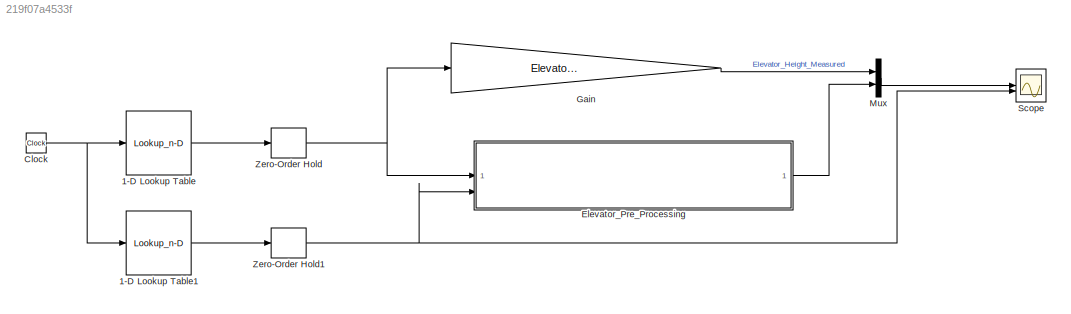
MODEL slx_219f07a4533f
KIND model
CONFIG AbsTol = auto
CONFIG EnableMultiTasking = off
CONFIG FixedStep = auto
CONFIG MaxStep = 0.02
CONFIG MinStep = auto
CONFIG RelTol = 1e-3
CONFIG SampleTimeConstraint = Unconstrained
CONFIG SolverName = VariableStepDiscrete
CONFIG StartTime = 0.0
CONFIG StopTime = 22
BLOCK [Lookup_n-D] 1-D Lookup Table
  BreakpointsForDimension1 = [0 2 4 6 8 10 12 14 16 18 20 22]
  InputPortMap = u0
  InternalRulePriority = Speed
  NumberOfTableDimensions = 1
  RndMeth = Simplest
  Table = 100-[0 0 100 100 10 10 100 100 20 20 100 100]
BLOCK [Lookup_n-D] 1-D Lookup Table1
  BreakpointsForDimension1 = [0 2 4 6 7.98 8 10 10.02 12 14 15.98 16 17.98 18 20 22]
  InputPortMap = u0
  InternalRulePriority = Speed
  NumberOfTableDimensions = 1
  RndMeth = Simplest
  Table = [0 0 0 0 0 1 1 0 0 0 0 1 1 0 0 0]
BLOCK [Clock] Clock
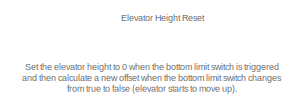
[diagram: Elevator_Pre_Processing - part 1/3, top center region]
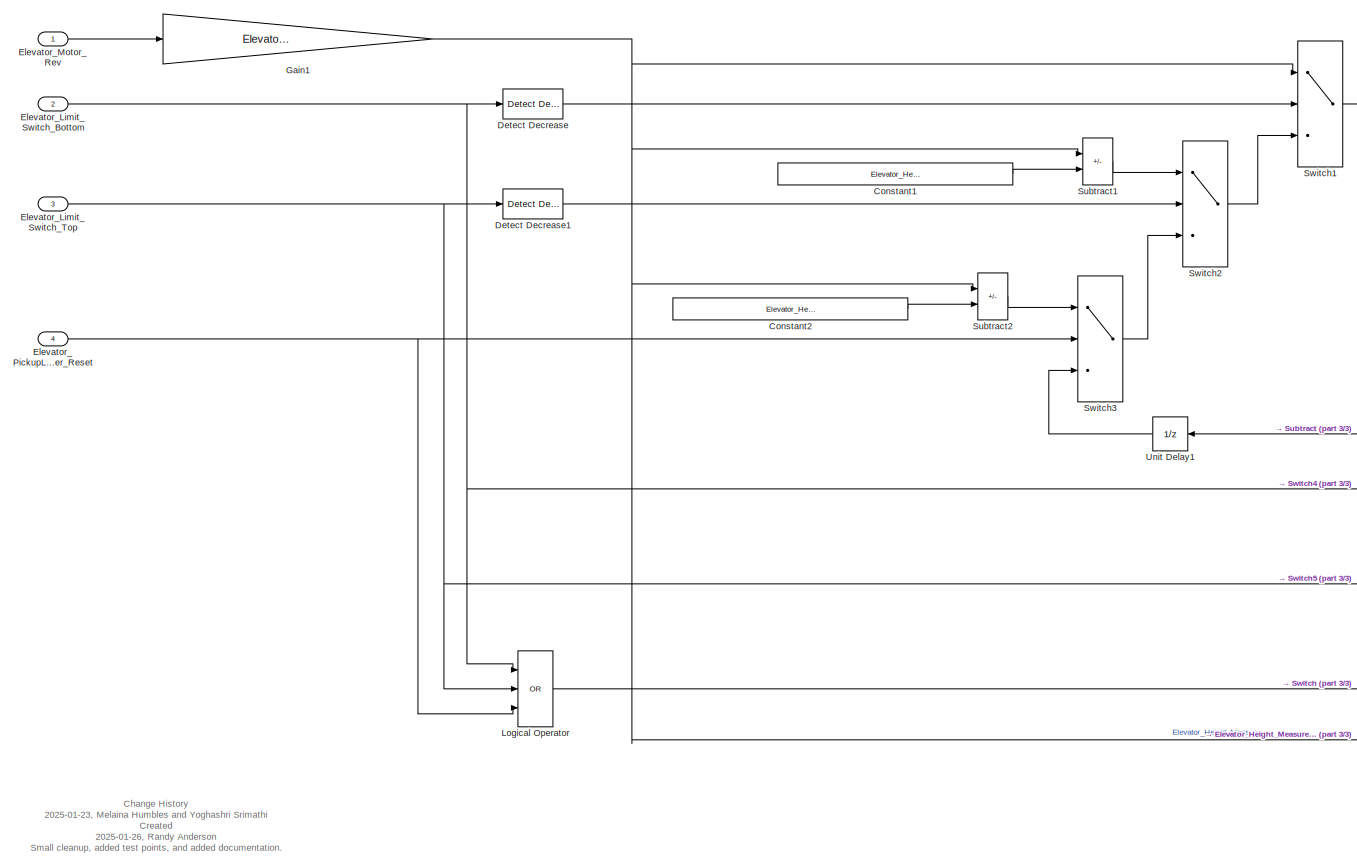
[diagram: Elevator_Pre_Processing - part 2/3, left side, full height]
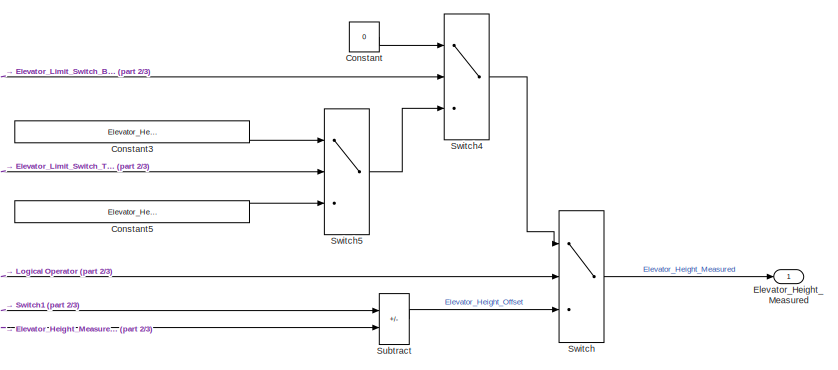
[diagram: Elevator_Pre_Processing - part 3/3, bottom right region]
BLOCK [SubSystem] Elevator_Pre_Processing
BLOCK [Constant] Elevator_Pre_Processing/Constant
  Value = 0
BLOCK [Constant] Elevator_Pre_Processing/Constant1
  Value = Elevator_Height_Top_Reset
BLOCK [Constant] Elevator_Pre_Processing/Constant2
  Value = Elevator_Height_PickupLower_Reset
BLOCK [Constant] Elevator_Pre_Processing/Constant3
  Value = Elevator_Height_Top_Reset
BLOCK [Constant] Elevator_Pre_Processing/Constant5
  Value = Elevator_Height_PickupLower_Reset
BLOCK [Reference] Elevator_Pre_Processing/Detect Decrease  REF=simulink/Logic and Bit
Operations/Detect
Decrease
  SourceBlock = simulink/Logic and Bit\nOperations/Detect\nDecrease
  SourceType = Detect Decrease
BLOCK [Reference] Elevator_Pre_Processing/Detect Decrease1  REF=simulink/Logic and Bit
Operations/Detect
Decrease
  SourceBlock = simulink/Logic and Bit\nOperations/Detect\nDecrease
  SourceType = Detect Decrease
BLOCK [Outport] Elevator_Pre_Processing/Elevator_Height_Measured
BLOCK [Inport] Elevator_Pre_Processing/Elevator_Limit_Switch_Bottom
  Port = 2
BLOCK [Inport] Elevator_Pre_Processing/Elevator_Limit_Switch_Top
  Port = 3
BLOCK [Inport] Elevator_Pre_Processing/Elevator_Motor_Rev
BLOCK [Inport] Elevator_Pre_Processing/Elevator_PickupLower_Reset
  Port = 4
BLOCK [Gain] Elevator_Pre_Processing/Gain1
  Gain = Elevator_MotorRev_to_Inch
BLOCK [Logic] Elevator_Pre_Processing/Logical Operator
  AllPortsSameDT = off
  Inputs = 3
  Operator = OR
  OutDataTypeStr = boolean
BLOCK [Sum] Elevator_Pre_Processing/Subtract
  IconShape = rectangular
  Inputs = -+
BLOCK [Sum] Elevator_Pre_Processing/Subtract1
  IconShape = rectangular
  Inputs = +-
BLOCK [Sum] Elevator_Pre_Processing/Subtract2
  IconShape = rectangular
  Inputs = +-
BLOCK [Switch] Elevator_Pre_Processing/Switch
  Criteria = u2 ~= 0
  InputSameDT = off
  SaturateOnIntegerOverflow = off
BLOCK [Switch] Elevator_Pre_Processing/Switch1
  Criteria = u2 ~= 0
  InputSameDT = off
  SaturateOnIntegerOverflow = off
BLOCK [Switch] Elevator_Pre_Processing/Switch2
  Criteria = u2 ~= 0
  InputSameDT = off
  SaturateOnIntegerOverflow = off
BLOCK [Switch] Elevator_Pre_Processing/Switch3
  Criteria = u2 ~= 0
  InputSameDT = off
  SaturateOnIntegerOverflow = off
BLOCK [Switch] Elevator_Pre_Processing/Switch4
  Criteria = u2 ~= 0
  InputSameDT = off
  SaturateOnIntegerOverflow = off
BLOCK [Switch] Elevator_Pre_Processing/Switch5
  Criteria = u2 ~= 0
  InputSameDT = off
  SaturateOnIntegerOverflow = off
BLOCK [UnitDelay] Elevator_Pre_Processing/Unit Delay1
  HasFrameUpgradeWarning = on
  SampleTime = -1
BLOCK [Gain] Gain
  Gain = Elevator_MotorRev_to_Inch
BLOCK [Mux] Mux
  DisplayOption = bar
  Inputs = 2
BLOCK [Scope] Scope
  Floating = off
  NumInputPorts = 2
  ScopeSpecificationString = Simulink.scopes.TimeScopeBlockCfg('CurrentConfiguration', extmgr.ConfigurationSet(extmgr.Configuration('Core','General UI',true),extmgr.Configuration('Core','Source UI',true),extmgr.Configuration('Sources','WiredSimulink',true),extmgr.Configuration('Visuals','Time Domain',true,'SerializedDisplays',{struct('MinYLimReal','-12.5','MaxYLimReal','112.5','YLabelReal','','MinYLimMag','0.00000','MaxYLimMa...<+2080ch>
BLOCK [ZeroOrderHold] Zero-Order Hold
  SampleTime = 0.02
BLOCK [ZeroOrderHold] Zero-Order Hold1
  SampleTime = 0.02
ANNOTATION Elevator_Pre_Processing: Elevator Height Reset
ANNOTATION Elevator_Pre_Processing: Change History 2025-01-23, Melaina Humbles and Yoghashri Srimathi Created 2025-01-26, Randy Anderson Small cleanup, added test points, and added documentation.
ANNOTATION Elevator_Pre_Processing: Set the elevator height to 0 when the bottom limit switch is triggered and then calculate a new offset when the bottom limit switch changes from true to false (elevator starts to move up).
LINE 1-D Lookup Table1:1 -> Zero-Order Hold1:1
LINE 1-D Lookup Table:1 -> Zero-Order Hold:1
NET Clock:1 -> 1-D Lookup Table1:1, 1-D Lookup Table:1
LINE Elevator_Pre_Processing/Constant1:1 -> Elevator_Pre_Processing/Subtract1:2
LINE Elevator_Pre_Processing/Constant2:1 -> Elevator_Pre_Processing/Subtract2:2
LINE Elevator_Pre_Processing/Constant3:1 -> Elevator_Pre_Processing/Switch5:1
LINE Elevator_Pre_Processing/Constant5:1 -> Elevator_Pre_Processing/Switch5:3
LINE Elevator_Pre_Processing/Constant:1 -> Elevator_Pre_Processing/Switch4:1
LINE Elevator_Pre_Processing/Detect Decrease1:1 -> Elevator_Pre_Processing/Switch2:2
LINE Elevator_Pre_Processing/Detect Decrease:1 -> Elevator_Pre_Processing/Switch1:2
NET Elevator_Pre_Processing/Elevator_Limit_Switch_Bottom:1 -> Elevator_Pre_Processing/Detect Decrease:1, Elevator_Pre_Processing/Logical Operator:1, Elevator_Pre_Processing/Switch4:2
NET Elevator_Pre_Processing/Elevator_Limit_Switch_Top:1 -> Elevator_Pre_Processing/Detect Decrease1:1, Elevator_Pre_Processing/Logical Operator:2, Elevator_Pre_Processing/Switch5:2
LINE Elevator_Pre_Processing/Elevator_Motor_Rev:1 -> Elevator_Pre_Processing/Gain1:1
NET Elevator_Pre_Processing/Elevator_PickupLower_Reset:1 -> Elevator_Pre_Processing/Logical Operator:3, Elevator_Pre_Processing/Switch3:2
NET Elevator_Pre_Processing/Gain1:1 -> Elevator_Pre_Processing/Subtract1:1, Elevator_Pre_Processing/Subtract2:1, Elevator_Pre_Processing/Subtract:2, Elevator_Pre_Processing/Switch1:1
LINE Elevator_Pre_Processing/Logical Operator:1 -> Elevator_Pre_Processing/Switch:2
LINE Elevator_Pre_Processing/Subtract1:1 -> Elevator_Pre_Processing/Switch2:1
LINE Elevator_Pre_Processing/Subtract2:1 -> Elevator_Pre_Processing/Switch3:1
LINE Elevator_Pre_Processing/Subtract:1 -> Elevator_Pre_Processing/Switch:3
NET Elevator_Pre_Processing/Switch1:1 -> Elevator_Pre_Processing/Subtract:1, Elevator_Pre_Processing/Unit Delay1:1
LINE Elevator_Pre_Processing/Switch2:1 -> Elevator_Pre_Processing/Switch1:3
LINE Elevator_Pre_Processing/Switch3:1 -> Elevator_Pre_Processing/Switch2:3
LINE Elevator_Pre_Processing/Switch4:1 -> Elevator_Pre_Processing/Switch:1
LINE Elevator_Pre_Processing/Switch5:1 -> Elevator_Pre_Processing/Switch4:3
LINE Elevator_Pre_Processing/Switch:1 -> Elevator_Pre_Processing/Elevator_Height_Measured:1
LINE Elevator_Pre_Processing/Unit Delay1:1 -> Elevator_Pre_Processing/Switch3:3
LINE Elevator_Pre_Processing:1 -> Mux:2
LINE Gain:1 -> Mux:1
LINE Mux:1 -> Scope:1
NET Zero-Order Hold1:1 -> Elevator_Pre_Processing:3, Scope:2
NET Zero-Order Hold:1 -> Elevator_Pre_Processing:1, Gain:1
note: NET lines group one-source signal fan-out (src -> all destinations, sorted); 1:1 wires keep LINE
